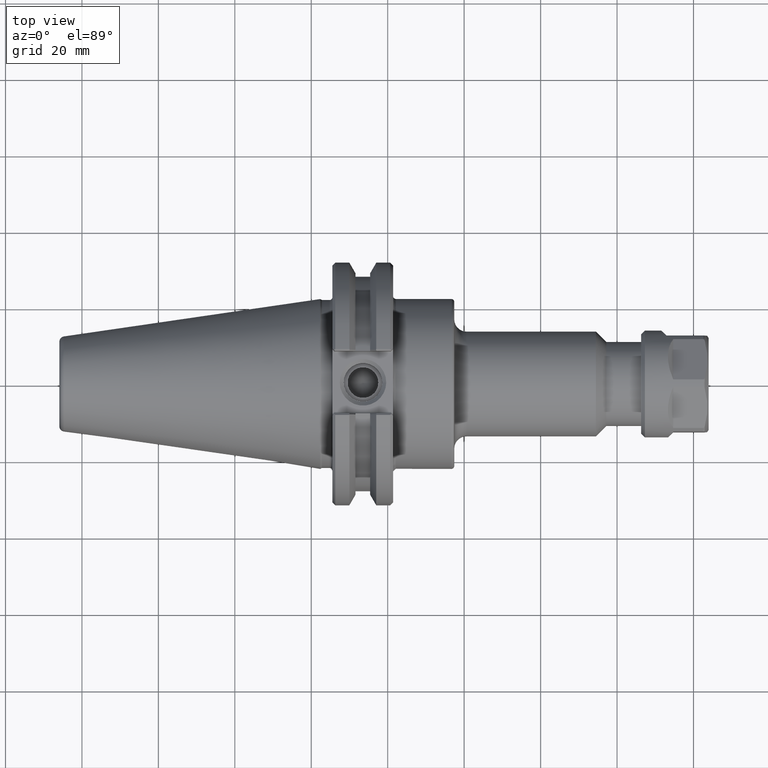
[diagram: clean part render]
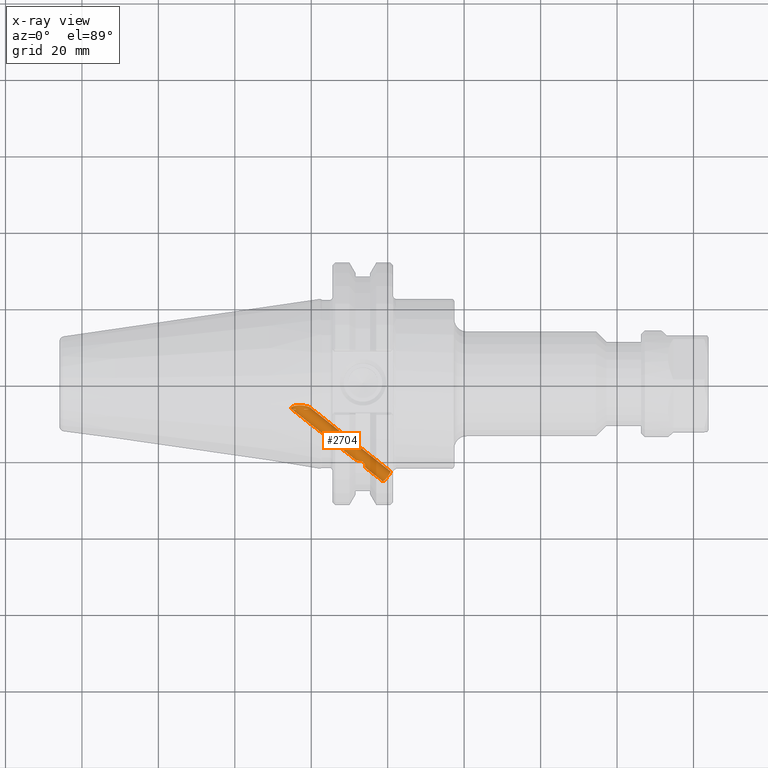
[diagram: x-ray — body ghosted, one internal face saturated and labeled with its STEP entity id]
A machine part, top view, then the same camera in x-ray: the body is ghosted and one INTERNAL B-rep face — a face not visible from any outside direction — is saturated and labeled: STEP entity #2704.
In plain terms, the highlighted cylindrical surface (bore or boss wall) has radius 1.65 mm, axis along (0.766, -0.604, -0.2198).
Its self-contained STEP definition (entity closure, byte-faithful):
#407=ELLIPSE('',#2892,0.0818810820124779,0.0649606299212598);
#408=ELLIPSE('',#2893,0.106709503634353,0.0649606299212598);
#512=CYLINDRICAL_SURFACE('',#2891,0.0649606299212598);
#565=FACE_BOUND('',#828,.T.);
#566=FACE_BOUND('',#829,.T.);
#646=FACE_OUTER_BOUND('',#827,.T.);
#827=EDGE_LOOP('',(#1873));
#828=EDGE_LOOP('',(#1874,#1875,#1876,#1877));
#829=EDGE_LOOP('',(#1878));
#1078=CIRCLE('',#2894,0.0649606299212598);
#1183=B_SPLINE_CURVE_WITH_KNOTS('',3,(#4018,#4019,#4020,#4021,#4022,#4023,
#4024,#4025,#4026,#4027,#4028,#4029,#4030,#4031,#4032,#4033,#4034,#4035,
#4036,#4037,#4038,#4039,#4040,#4041,#4042,#4043,#4044,#4045,#4046,#4047,
#4048,#4049,#4050,#4051,#4052,#4053,#4054,#4055),.UNSPECIFIED.,.T.,.F.,
(4,2,2,2,2,2,2,2,2,2,2,2,2,2,2,2,2,2,4),(0.,0.0854619854148894,0.170923970829779,
0.237805712342748,0.304687453855716,0.371569195368685,0.438450936881654,
0.523912922296543,0.609374907711433,0.716946616923438,0.824518326135443,
0.887722797776608,0.91932503359719,0.950927269417772,0.982529505238354,
1.01413174105894,1.0773362127001,1.18490792191211,1.29247963112411),
 .UNSPECIFIED.);
#1184=B_SPLINE_CURVE_WITH_KNOTS('',3,(#4060,#4061,#4062,#4063,#4064,#4065,
#4066,#4067),.UNSPECIFIED.,.F.,.F.,(4,2,2,4),(0.593411757893466,0.594287181314811,
0.674960412832973,0.724023505770059),.UNSPECIFIED.);
#1185=B_SPLINE_CURVE_WITH_KNOTS('',3,(#4070,#4071,#4072,#4073,#4074,#4075,
#4076,#4077),.UNSPECIFIED.,.F.,.F.,(4,2,2,4),(0.0316101385810755,0.0806732315181617,
0.161346463036323,0.16222188645767),.UNSPECIFIED.);
#1242=VERTEX_POINT('',#4017);
#1243=VERTEX_POINT('',#4056);
#1244=VERTEX_POINT('',#4057);
#1245=VERTEX_POINT('',#4059);
#1246=VERTEX_POINT('',#4068);
#1247=VERTEX_POINT('',#4078);
#1505=EDGE_CURVE('',#1242,#1242,#1183,.T.);
#1506=EDGE_CURVE('',#1243,#1244,#407,.T.);
#1507=EDGE_CURVE('',#1243,#1245,#1184,.T.);
#1508=EDGE_CURVE('',#1246,#1245,#408,.T.);
#1509=EDGE_CURVE('',#1246,#1244,#1185,.T.);
#1510=EDGE_CURVE('',#1247,#1247,#1078,.T.);
#1873=ORIENTED_EDGE('',*,*,#1505,.F.);
#1874=ORIENTED_EDGE('',*,*,#1506,.F.);
#1875=ORIENTED_EDGE('',*,*,#1507,.T.);
#1876=ORIENTED_EDGE('',*,*,#1508,.F.);
#1877=ORIENTED_EDGE('',*,*,#1509,.T.);
#1878=ORIENTED_EDGE('',*,*,#1510,.T.);
#2704=ADVANCED_FACE('',(#646,#565,#566),#512,.F.);
#2891=AXIS2_PLACEMENT_3D('',#4016,#3227,#3228);
#2892=AXIS2_PLACEMENT_3D('',#4058,#3229,#3230);
#2893=AXIS2_PLACEMENT_3D('',#4069,#3231,#3232);
#2894=AXIS2_PLACEMENT_3D('',#4079,#3233,#3234);
#3227=DIRECTION('center_axis',(0.766044443118978,-0.604022773555054,-0.219846310392954));
#3228=DIRECTION('ref_axis',(-0.642787609686464,-0.71984631039301,-0.262002630229416));
#3229=DIRECTION('center_axis',(0.999048221581858,-0.0409888164304066,-0.0149187091184702));
#3230=DIRECTION('ref_axis',(-0.0436193873653343,-0.938798241629754,-0.341694615934689));
#3231=DIRECTION('center_axis',(0.0436193873653384,0.938798241629757,0.341694615934681));
#3232=DIRECTION('ref_axis',(-0.999048221581858,0.0409888164304126,0.0149187091184652));
#3233=DIRECTION('center_axis',(0.766044443118978,-0.604022773555054,-0.219846310392954));
#3234=DIRECTION('ref_axis',(-0.642787609686464,-0.71984631039301,-0.262002630229416));
#4016=CARTESIAN_POINT('Origin',(0.168048821694482,-0.54002723584763,-0.196553839541592));
#4017=CARTESIAN_POINT('',(-0.212499384876503,-0.262184443284453,-0.0262976747949579));
#4018=CARTESIAN_POINT('Ctrl Pts',(-0.212499384876502,-0.262184443284452,
-0.0262976747949672));
#4019=CARTESIAN_POINT('Ctrl Pts',(-0.22371486852675,-0.262184443284453,
-0.0262976747949616));
#4020=CARTESIAN_POINT('Ctrl Pts',(-0.235937954596207,-0.262071055435612,
-0.0275875776337094));
#4021=CARTESIAN_POINT('Ctrl Pts',(-0.259146542129616,-0.261330961365288,
-0.0338886682565591));
#4022=CARTESIAN_POINT('Ctrl Pts',(-0.270125989538871,-0.260697268877637,
-0.038921312501539));
#4023=CARTESIAN_POINT('Ctrl Pts',(-0.286080175530676,-0.258613183810086,
-0.0507882917550374));
#4024=CARTESIAN_POINT('Ctrl Pts',(-0.292601764883421,-0.257242850239285,
-0.0576434615229326));
#4025=CARTESIAN_POINT('Ctrl Pts',(-0.301494827838025,-0.253258166125534,
-0.0731912138903033));
#4026=CARTESIAN_POINT('Ctrl Pts',(-0.303867797055435,-0.250610961327498,
-0.081874502127856));
#4027=CARTESIAN_POINT('Ctrl Pts',(-0.303867797055435,-0.244607049826675,
-0.0983701134047713));
#4028=CARTESIAN_POINT('Ctrl Pts',(-0.301494827838025,-0.241053416261573,
-0.106723488551629));
#4029=CARTESIAN_POINT('Ctrl Pts',(-0.292601764883421,-0.234111958804275,
-0.121195063432477));
#4030=CARTESIAN_POINT('Ctrl Pts',(-0.286080175530676,-0.230755277032306,
-0.127327261580259));
#4031=CARTESIAN_POINT('Ctrl Pts',(-0.270125989538871,-0.224723831588735,
-0.137757519152964));
#4032=CARTESIAN_POINT('Ctrl Pts',(-0.259146542129616,-0.221974346832913,
-0.142020077990439));
#4033=CARTESIAN_POINT('Ctrl Pts',(-0.235937954596207,-0.21849102880299,
-0.147322716746069));
#4034=CARTESIAN_POINT('Ctrl Pts',(-0.223714868526751,-0.217748755372063,
-0.148383723952182));
#4035=CARTESIAN_POINT('Ctrl Pts',(-0.198382362670203,-0.217748755372063,
-0.148383723952182));
#4036=CARTESIAN_POINT('Ctrl Pts',(-0.183098401372983,-0.218909559230453,
-0.146723485152978));
#4037=CARTESIAN_POINT('Ctrl Pts',(-0.153839708197751,-0.223383479724822,
-0.1398177294946));
#4038=CARTESIAN_POINT('Ctrl Pts',(-0.139847978803885,-0.226659709237687,
-0.134620475240579));
#4039=CARTESIAN_POINT('Ctrl Pts',(-0.121453946483014,-0.232858195393955,
-0.123417041977556));
#4040=CARTESIAN_POINT('Ctrl Pts',(-0.114663431374415,-0.235673710382856,
-0.118065981616417));
#4041=CARTESIAN_POINT('Ctrl Pts',(-0.107259530008974,-0.240143940091245,
-0.108514950715378));
#4042=CARTESIAN_POINT('Ctrl Pts',(-0.105245397199112,-0.241674455822393,
-0.105077004222716));
#4043=CARTESIAN_POINT('Ctrl Pts',(-0.102489004303413,-0.244697897096899,
-0.0978292166960712));
#4044=CARTESIAN_POINT('Ctrl Pts',(-0.101746197502704,-0.246190553972787,
-0.0940194715197175));
#4045=CARTESIAN_POINT('Ctrl Pts',(-0.101746197502704,-0.249027457181387,
-0.0862251440129099));
#4046=CARTESIAN_POINT('Ctrl Pts',(-0.102489004303413,-0.250332872671553,
-0.0823472485455306));
#4047=CARTESIAN_POINT('Ctrl Pts',(-0.105245397199112,-0.252675570303889,
-0.0748516905959696));
#4048=CARTESIAN_POINT('Ctrl Pts',(-0.107259530008974,-0.253712996641185,
-0.0712342742411138));
#4049=CARTESIAN_POINT('Ctrl Pts',(-0.114663431374415,-0.25642788633653,
-0.0610443518243103));
#4050=CARTESIAN_POINT('Ctrl Pts',(-0.121453946483014,-0.257710672023589,
-0.055135423620113));
#4051=CARTESIAN_POINT('Ctrl Pts',(-0.139847978803885,-0.260163784235252,
-0.0425687857250571));
#4052=CARTESIAN_POINT('Ctrl Pts',(-0.153839708197751,-0.260994777461413,
-0.0364815382469293));
#4053=CARTESIAN_POINT('Ctrl Pts',(-0.183098401372983,-0.262006489700474,
-0.0283156418387878));
#4054=CARTESIAN_POINT('Ctrl Pts',(-0.198382362670202,-0.262184443284453,
-0.0262976747949549));
#4055=CARTESIAN_POINT('Ctrl Pts',(-0.212499384876502,-0.262184443284454,
-0.0262976747949478));
#4056=CARTESIAN_POINT('',(0.463832838020224,-0.833793621930359,-0.244509186428014));
#4057=CARTESIAN_POINT('',(0.463832838020224,-0.795890446278261,-0.348647305657775));
#4058=CARTESIAN_POINT('Origin',(0.465696957641437,-0.774721520537127,-0.281975573320966));
#4059=CARTESIAN_POINT('',(0.432935656604586,-0.794520130664736,-0.22339716054651));
#4060=CARTESIAN_POINT('Ctrl Pts',(0.463832838020224,-0.833793621930359,
-0.244509186428014));
#4061=CARTESIAN_POINT('Ctrl Pts',(0.46378535022469,-0.833708529695863,-0.244447719985868));
#4062=CARTESIAN_POINT('Ctrl Pts',(0.463737834703973,-0.833623524086604,
-0.244386459209896));
#4063=CARTESIAN_POINT('Ctrl Pts',(0.459309163086203,-0.825713349674783,
-0.238699002037131));
#4064=CARTESIAN_POINT('Ctrl Pts',(0.453671073827101,-0.81692415933178,-0.233670789995068));
#4065=CARTESIAN_POINT('Ctrl Pts',(0.442502860616756,-0.803710560908139,
-0.227246945100886));
#4066=CARTESIAN_POINT('Ctrl Pts',(0.437811188416814,-0.798921157450058,
-0.225170393511071));
#4067=CARTESIAN_POINT('Ctrl Pts',(0.432935656604586,-0.794520130664736,
-0.223397160546509));
#4068=CARTESIAN_POINT('',(0.432935656604586,-0.752234657880336,-0.33957554219261));
#4069=CARTESIAN_POINT('Origin',(0.465696957641437,-0.774721520537127,-0.281975573320966));
#4070=CARTESIAN_POINT('Ctrl Pts',(0.432935656604586,-0.752234657880336,
-0.339575542192611));
#4071=CARTESIAN_POINT('Ctrl Pts',(0.437811188416814,-0.756745852171958,
-0.341046092421256));
#4072=CARTESIAN_POINT('Ctrl Pts',(0.442502860616756,-0.761749529709683,
-0.342533930815673));
#4073=CARTESIAN_POINT('Ctrl Pts',(0.453671073827101,-0.776000901260248,
-0.346106517477116));
#4074=CARTESIAN_POINT('Ctrl Pts',(0.459309163086203,-0.785965884081535,
-0.34790426623513));
#4075=CARTESIAN_POINT('Ctrl Pts',(0.463737834703973,-0.795681256235088,
-0.348631983374834));
#4076=CARTESIAN_POINT('Ctrl Pts',(0.46378535022469,-0.79578575197745,-0.348639695450204));
#4077=CARTESIAN_POINT('Ctrl Pts',(0.463832838020224,-0.795890446278261,
-0.348647305657775));
#4078=CARTESIAN_POINT('',(0.63943486786008,-0.991399130395797,-0.360839773741467));
#4079=CARTESIAN_POINT('Origin',(0.681190755890899,-0.944637460626176,-0.34381991784074));